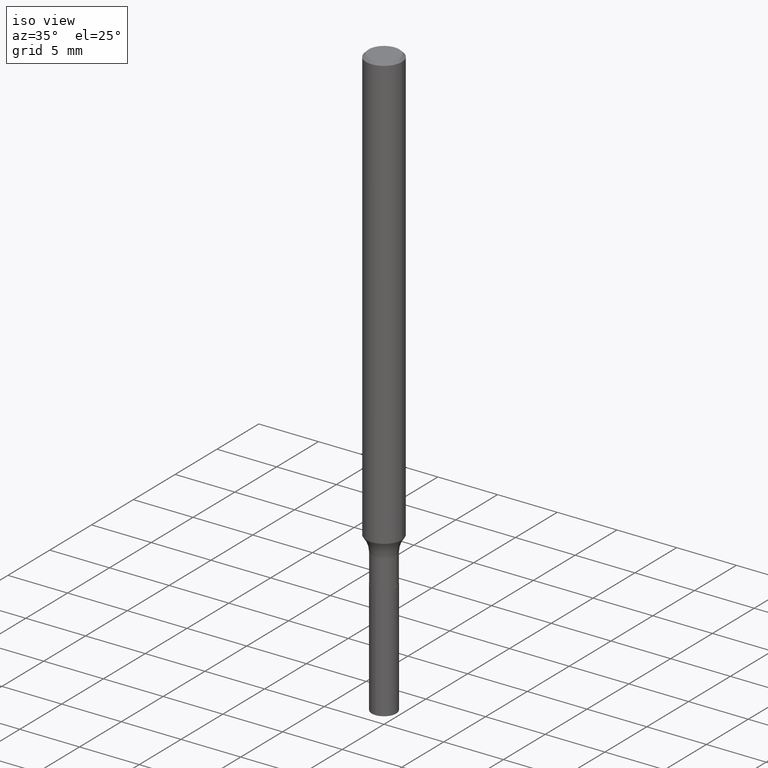
[diagram: clean part render]
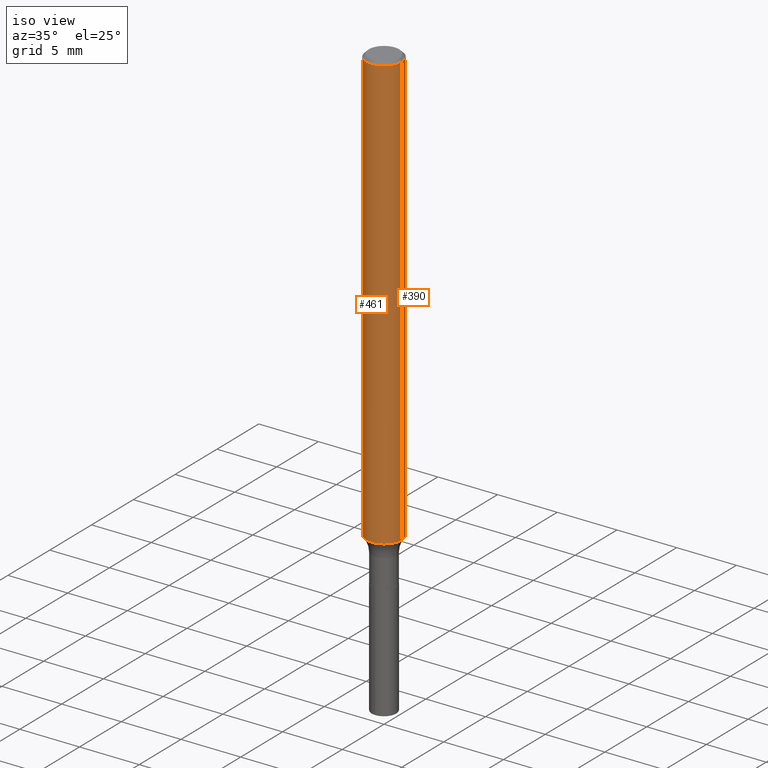
[diagram: same view with one multi-face feature highlighted, each face labeled with its STEP entity id]
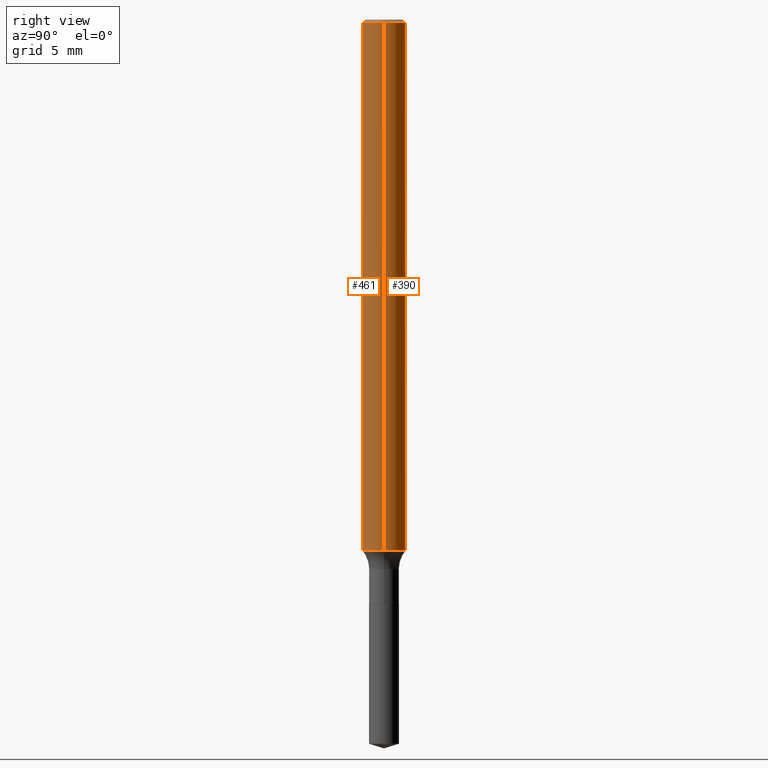
[diagram: same view with one multi-face feature highlighted, each face labeled with its STEP entity id]
A machine part, iso view. The highlighted faces form ONE feature: a constant-radius fillet chain: 2 tangent blend faces with common blend radius 1.4999 mm. The faces share edges in the B-rep.
A second angle (right view) of the same feature is appended — it is thin or edge-on in the first view.
Their STEP definitions:
[1] entity #461 (Cylinder):
#3 = EDGE_CURVE ( 'NONE', #121, #447, #385, .T. ) ;
#6 = ORIENTED_EDGE ( 'NONE', *, *, #182, .F. ) ;
#9 = VERTEX_POINT ( 'NONE', #17 ) ;
#11 = CARTESIAN_POINT ( 'NONE',  ( 0.05905000000000009547, -4.123439461173747229E-16, 2.879382386107504424E-30 ) ) ;
#17 = CARTESIAN_POINT ( 'NONE',  ( -0.05905000000000000526, -2.098108833677877703E-15, -0.008857500000000061505 ) ) ;
#36 = EDGE_LOOP ( 'NONE', ( #55, #269, #161, #6 ) ) ;
#49 = VECTOR ( 'NONE', #277, 39.37007874015748143 ) ;
#55 = ORIENTED_EDGE ( 'NONE', *, *, #453, .F. ) ;
#65 = DIRECTION ( 'NONE',  ( 1.000000000000000000, -6.982962677686266711E-15, 4.876176775795935232E-29 ) ) ;
#91 = LINE ( 'NONE', #11, #295 ) ;
#96 = CARTESIAN_POINT ( 'NONE',  ( 3.505162329553956090E-29, -5.004442842329635631E-15, -1.433329397082726331 ) ) ;
#121 = VERTEX_POINT ( 'NONE', #352 ) ;
#133 = CARTESIAN_POINT ( 'NONE',  ( -0.05905000000000009547, 4.195754854663398381E-16, -2.904631170795526446E-30 ) ) ;
#161 = ORIENTED_EDGE ( 'NONE', *, *, #376, .T. ) ;
#164 = DIRECTION ( 'NONE',  ( -2.445468806185136597E-29, 3.491481338843145583E-15, 1.000000000000000000 ) ) ;
#182 = EDGE_CURVE ( 'NONE', #9, #329, #296, .T. ) ;
#192 = DIRECTION ( 'NONE',  ( 1.000000000000000000, -6.982962677686267499E-15, 0.000000000000000000 ) ) ;
#195 = CARTESIAN_POINT ( 'NONE',  ( 0.05905000000000000526, -4.432697420761775264E-16, -0.008857500000000061505 ) ) ;
#204 = DIRECTION ( 'NONE',  ( 1.000000000000000000, -6.982962677686267499E-15, 0.000000000000000000 ) ) ;
#265 = AXIS2_PLACEMENT_3D ( 'NONE', #491, #309, #192 ) ;
#269 = ORIENTED_EDGE ( 'NONE', *, *, #3, .T. ) ;
#277 = DIRECTION ( 'NONE',  ( -2.445468806185136877E-29, 3.491481338843145188E-15, 1.000000000000000000 ) ) ;
#295 = VECTOR ( 'NONE', #471, 39.37007874015748143 ) ;
#296 = CIRCLE ( 'NONE', #265, 0.05905000000000000526 ) ;
#309 = DIRECTION ( 'NONE',  ( -2.445468806185136597E-29, 3.491481338843145583E-15, 1.000000000000000000 ) ) ;
#329 = VERTEX_POINT ( 'NONE', #195 ) ;
#352 = CARTESIAN_POINT ( 'NONE',  ( -0.05905000000000020649, -4.584867356863295349E-15, -1.433329397082726331 ) ) ;
#358 = CARTESIAN_POINT ( 'NONE',  ( 0.000000000000000000, 0.000000000000000000, 0.000000000000000000 ) ) ;
#376 = EDGE_CURVE ( 'NONE', #447, #329, #91, .T. ) ;
#385 = CIRCLE ( 'NONE', #409, 0.05905000000000017873 ) ;
#399 = DIRECTION ( 'NONE',  ( -2.445468806185136597E-29, 3.491481338843145583E-15, 1.000000000000000000 ) ) ;
#401 = LINE ( 'NONE', #133, #49 ) ;
#409 = AXIS2_PLACEMENT_3D ( 'NONE', #96, #399, #204 ) ;
#423 = AXIS2_PLACEMENT_3D ( 'NONE', #358, #164, #65 ) ;
#439 = CYLINDRICAL_SURFACE ( 'NONE', #423, 0.05905000000000009547 ) ;
#447 = VERTEX_POINT ( 'NONE', #466 ) ;
#453 = EDGE_CURVE ( 'NONE', #121, #9, #401, .T. ) ;
#460 = FACE_OUTER_BOUND ( 'NONE', #36, .T. ) ;
#461 = ADVANCED_FACE ( 'NONE', ( #460 ), #439, .T. ) ;
#466 = CARTESIAN_POINT ( 'NONE',  ( 0.05905000000000020649, -5.416786788447011340E-15, -1.433329397082726331 ) ) ;
#471 = DIRECTION ( 'NONE',  ( -2.445468806185136877E-29, 3.491481338843145188E-15, 1.000000000000000000 ) ) ;
#491 = CARTESIAN_POINT ( 'NONE',  ( 2.166073995078499686E-31, -3.092579595880337662E-17, -0.008857500000000061505 ) ) ;
[2] entity #390 (Cylinder):
#9 = VERTEX_POINT ( 'NONE', #17 ) ;
#11 = CARTESIAN_POINT ( 'NONE',  ( 0.05905000000000009547, -4.123439461173747229E-16, 2.879382386107504424E-30 ) ) ;
#17 = CARTESIAN_POINT ( 'NONE',  ( -0.05905000000000000526, -2.098108833677877703E-15, -0.008857500000000061505 ) ) ;
#49 = VECTOR ( 'NONE', #277, 39.37007874015748143 ) ;
#83 = DIRECTION ( 'NONE',  ( 1.000000000000000000, -6.982962677686267499E-15, 0.000000000000000000 ) ) ;
#87 = CARTESIAN_POINT ( 'NONE',  ( 2.166073995078499686E-31, -3.092579595880337662E-17, -0.008857500000000061505 ) ) ;
#89 = CARTESIAN_POINT ( 'NONE',  ( 3.505162329553956090E-29, -5.004442842329635631E-15, -1.433329397082726331 ) ) ;
#91 = LINE ( 'NONE', #11, #295 ) ;
#99 = DIRECTION ( 'NONE',  ( 1.000000000000000000, -6.982962677686266711E-15, 4.876176775795935232E-29 ) ) ;
#121 = VERTEX_POINT ( 'NONE', #352 ) ;
#123 = EDGE_LOOP ( 'NONE', ( #300, #327, #131, #180 ) ) ;
#131 = ORIENTED_EDGE ( 'NONE', *, *, #138, .F. ) ;
#133 = CARTESIAN_POINT ( 'NONE',  ( -0.05905000000000009547, 4.195754854663398381E-16, -2.904631170795526446E-30 ) ) ;
#138 = EDGE_CURVE ( 'NONE', #329, #9, #197, .T. ) ;
#149 = DIRECTION ( 'NONE',  ( -2.445468806185136597E-29, 3.491481338843145583E-15, 1.000000000000000000 ) ) ;
#162 = FACE_OUTER_BOUND ( 'NONE', #123, .T. ) ;
#180 = ORIENTED_EDGE ( 'NONE', *, *, #376, .F. ) ;
#195 = CARTESIAN_POINT ( 'NONE',  ( 0.05905000000000000526, -4.432697420761775264E-16, -0.008857500000000061505 ) ) ;
#197 = CIRCLE ( 'NONE', #479, 0.05905000000000000526 ) ;
#199 = DIRECTION ( 'NONE',  ( 1.000000000000000000, -6.982962677686267499E-15, 0.000000000000000000 ) ) ;
#206 = DIRECTION ( 'NONE',  ( -2.445468806185136597E-29, 3.491481338843145583E-15, 1.000000000000000000 ) ) ;
#227 = AXIS2_PLACEMENT_3D ( 'NONE', #404, #391, #99 ) ;
#236 = CYLINDRICAL_SURFACE ( 'NONE', #227, 0.05905000000000009547 ) ;
#277 = DIRECTION ( 'NONE',  ( -2.445468806185136877E-29, 3.491481338843145188E-15, 1.000000000000000000 ) ) ;
#295 = VECTOR ( 'NONE', #471, 39.37007874015748143 ) ;
#300 = ORIENTED_EDGE ( 'NONE', *, *, #370, .T. ) ;
#327 = ORIENTED_EDGE ( 'NONE', *, *, #453, .T. ) ;
#329 = VERTEX_POINT ( 'NONE', #195 ) ;
#336 = CIRCLE ( 'NONE', #407, 0.05905000000000017873 ) ;
#352 = CARTESIAN_POINT ( 'NONE',  ( -0.05905000000000020649, -4.584867356863295349E-15, -1.433329397082726331 ) ) ;
#370 = EDGE_CURVE ( 'NONE', #447, #121, #336, .T. ) ;
#376 = EDGE_CURVE ( 'NONE', #447, #329, #91, .T. ) ;
#390 = ADVANCED_FACE ( 'NONE', ( #162 ), #236, .T. ) ;
#391 = DIRECTION ( 'NONE',  ( -2.445468806185136597E-29, 3.491481338843145583E-15, 1.000000000000000000 ) ) ;
#401 = LINE ( 'NONE', #133, #49 ) ;
#404 = CARTESIAN_POINT ( 'NONE',  ( 0.000000000000000000, 0.000000000000000000, 0.000000000000000000 ) ) ;
#407 = AXIS2_PLACEMENT_3D ( 'NONE', #89, #206, #199 ) ;
#447 = VERTEX_POINT ( 'NONE', #466 ) ;
#453 = EDGE_CURVE ( 'NONE', #121, #9, #401, .T. ) ;
#466 = CARTESIAN_POINT ( 'NONE',  ( 0.05905000000000020649, -5.416786788447011340E-15, -1.433329397082726331 ) ) ;
#471 = DIRECTION ( 'NONE',  ( -2.445468806185136877E-29, 3.491481338843145188E-15, 1.000000000000000000 ) ) ;
#479 = AXIS2_PLACEMENT_3D ( 'NONE', #87, #149, #83 ) ;